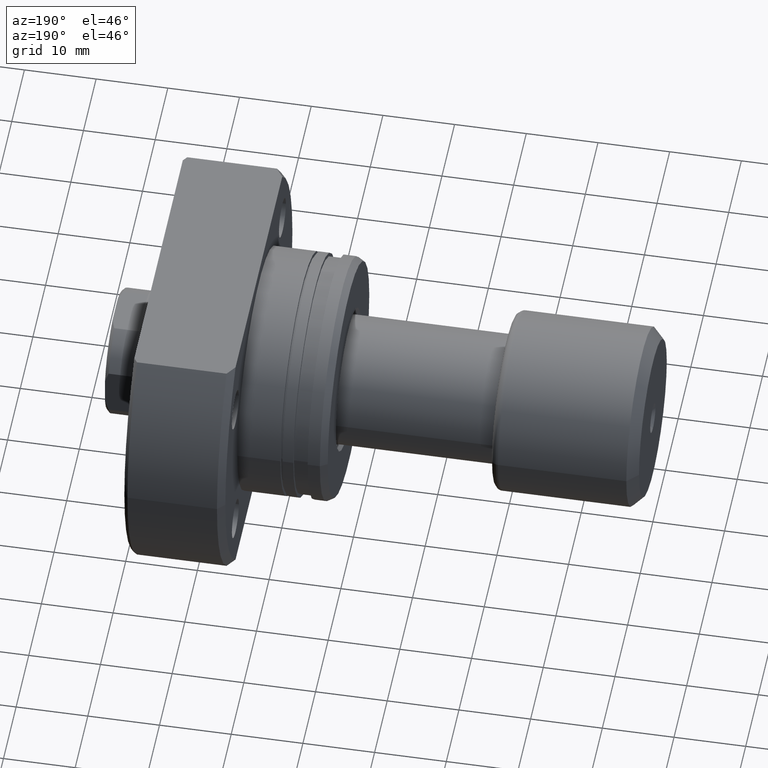
[diagram: clean part render]
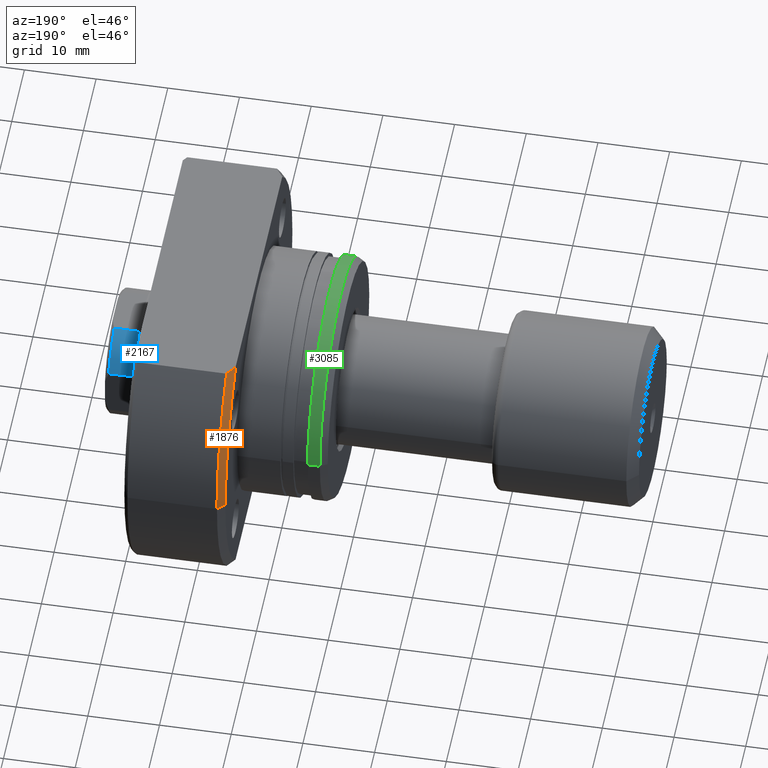
[diagram: same view with three faces highlighted in distinct colors, each labeled with its STEP entity id]
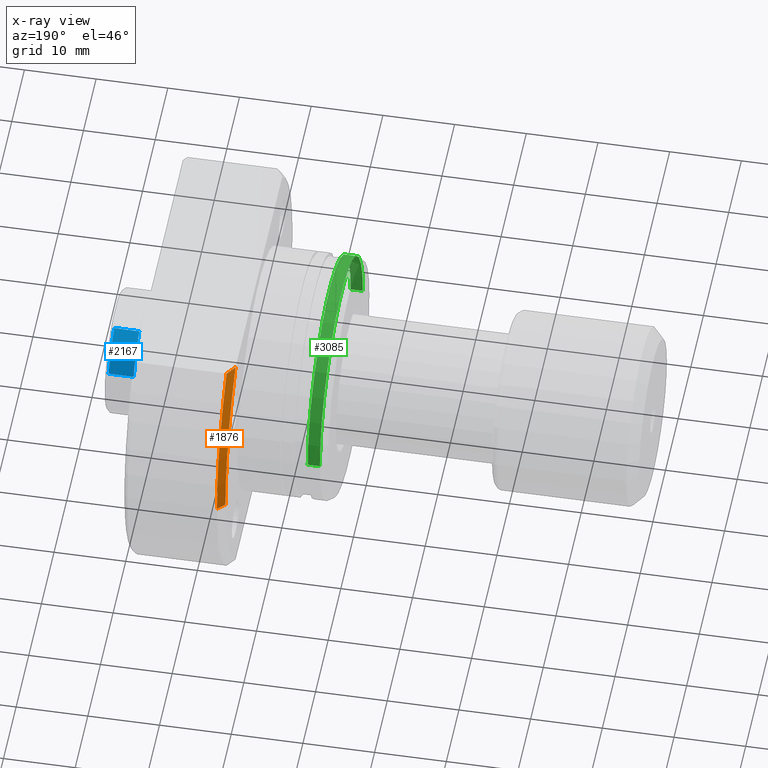
[diagram: x-ray of the same camera — body ghosted, the three highlighted faces saturated]
A machine part, auxiliary view with three faces highlighted in distinct colors.
The next image is the same camera in x-ray (body ghosted, the three faces saturated) — at least one of them is partly hidden behind the body in this view.
Their STEP definitions:

[orange] entity #1876 — the highlighted conical surface has half-angle 45 deg.
#54 = CARTESIAN_POINT ( 'NONE',  ( 13.16276636410033873, 19.41442114037127453, 19.00000000000001066 ) ) ;
#83 = CARTESIAN_POINT ( 'NONE',  ( 12.50000000000000355, 18.47295320191106072, 19.00000000000001066 ) ) ;
#107 = CARTESIAN_POINT ( 'NONE',  ( 12.82923531929442262, 18.94525104546319128, 19.00000000000001066 ) ) ;
#155 = DIRECTION ( 'NONE',  ( 0.7071067811865500152, 0.7071067811865450192, 0.000000000000000000 ) ) ;
#164 = VERTEX_POINT ( 'NONE', #3053 ) ;
#187 = CONICAL_SURFACE ( 'NONE', #1115, 26.49999999999993250, 0.7853981633974447263 ) ;
#481 = EDGE_LOOP ( 'NONE', ( #1389, #1722, #2633, #2459 ) ) ;
#628 = VECTOR ( 'NONE', #155, 1000.000000000000000 ) ;
#734 = DIRECTION ( 'NONE',  ( 1.000000000000000000, 9.242617352055502386E-18, -0.000000000000000000 ) ) ;
#745 = CARTESIAN_POINT ( 'NONE',  ( 12.50000000000000355, 18.47295320191106072, 19.00000000000001066 ) ) ;
#897 = EDGE_CURVE ( 'NONE', #164, #3152, #2175, .T. ) ;
#964 = AXIS2_PLACEMENT_3D ( 'NONE', #1221, #734, #1738 ) ;
#1092 = DIRECTION ( 'NONE',  ( 0.000000000000000000, 1.000000000000000000, 0.000000000000000000 ) ) ;
#1115 = AXIS2_PLACEMENT_3D ( 'NONE', #2290, #2577, #1092 ) ;
#1144 = EDGE_CURVE ( 'NONE', #164, #2671, #2298, .T. ) ;
#1221 = CARTESIAN_POINT ( 'NONE',  ( 13.49999999999999112, 1.247753342527491952E-16, 0.000000000000000000 ) ) ;
#1248 = B_SPLINE_CURVE_WITH_KNOTS ( 'NONE', 3,
 ( #1314, #54, #107, #83 ),
 .UNSPECIFIED., .F., .F.,
 ( 4, 4 ),
 ( 0.03128279945209438972, 0.03301205973984312758 ),
 .UNSPECIFIED. ) ;
#1314 = CARTESIAN_POINT ( 'NONE',  ( 13.49999999999998757, 19.88089535207129188, 19.00000000000000355 ) ) ;
#1389 = ORIENTED_EDGE ( 'NONE', *, *, #897, .F. ) ;
#1515 = EDGE_CURVE ( 'NONE', #1734, #2671, #1248, .T. ) ;
#1626 = DIRECTION ( 'NONE',  ( 1.000000000000000000, 9.242617352055502386E-18, -0.000000000000000000 ) ) ;
#1722 = ORIENTED_EDGE ( 'NONE', *, *, #1144, .T. ) ;
#1734 = VERTEX_POINT ( 'NONE', #2969 ) ;
#1738 = DIRECTION ( 'NONE',  ( 0.000000000000000000, 1.000000000000000000, 0.000000000000000000 ) ) ;
#1796 = EDGE_CURVE ( 'NONE', #3152, #1734, #2572, .T. ) ;
#1876 = ADVANCED_FACE ( 'NONE', ( #2774 ), #187, .T. ) ;
#2085 = CARTESIAN_POINT ( 'NONE',  ( 13.49999999999999112, 27.49999999999991473, 0.000000000000000000 ) ) ;
#2175 = LINE ( 'NONE', #3184, #628 ) ;
#2207 = AXIS2_PLACEMENT_3D ( 'NONE', #2678, #1626, #2620 ) ;
#2290 = CARTESIAN_POINT ( 'NONE',  ( 12.50000000000000355, 1.155327169006938207E-16, 0.000000000000000000 ) ) ;
#2298 = CIRCLE ( 'NONE', #2207, 26.49999999999993250 ) ;
#2459 = ORIENTED_EDGE ( 'NONE', *, *, #1796, .F. ) ;
#2572 = CIRCLE ( 'NONE', #964, 27.49999999999991473 ) ;
#2577 = DIRECTION ( 'NONE',  ( 1.000000000000000000, 9.242617352055502386E-18, -0.000000000000000000 ) ) ;
#2620 = DIRECTION ( 'NONE',  ( 0.000000000000000000, 1.000000000000000000, 0.000000000000000000 ) ) ;
#2633 = ORIENTED_EDGE ( 'NONE', *, *, #1515, .F. ) ;
#2671 = VERTEX_POINT ( 'NONE', #745 ) ;
#2678 = CARTESIAN_POINT ( 'NONE',  ( 12.50000000000000355, 1.155327169006938207E-16, 0.000000000000000000 ) ) ;
#2774 = FACE_OUTER_BOUND ( 'NONE', #481, .T. ) ;
#2969 = CARTESIAN_POINT ( 'NONE',  ( 13.49999999999998757, 19.88089535207129188, 19.00000000000000355 ) ) ;
#3053 = CARTESIAN_POINT ( 'NONE',  ( 12.50000000000000355, 26.49999999999993250, 0.000000000000000000 ) ) ;
#3152 = VERTEX_POINT ( 'NONE', #2085 ) ;
#3184 = CARTESIAN_POINT ( 'NONE',  ( 12.50000000000000355, 26.49999999999993250, 0.000000000000000000 ) ) ;

[blue] entity #2167 — the highlighted cylindrical surface (partial cylindrical patch) has radius 8.75 mm, axis along (-1, -0, -0).
#134 = AXIS2_PLACEMENT_3D ( 'NONE', #1238, #2224, #2233 ) ;
#138 = LINE ( 'NONE', #2651, #2830 ) ;
#290 = CARTESIAN_POINT ( 'NONE',  ( 71.00000000000012790, 7.999999999999282352, 3.544361719689665069 ) ) ;
#308 = CARTESIAN_POINT ( 'NONE',  ( 71.00000000000014211, 7.593750486690383471E-16, 0.000000000000000000 ) ) ;
#368 = ORIENTED_EDGE ( 'NONE', *, *, #1311, .F. ) ;
#485 = ORIENTED_EDGE ( 'NONE', *, *, #539, .T. ) ;
#519 = CARTESIAN_POINT ( 'NONE',  ( 71.00000000000012790, 7.999999999999282352, 3.544361719689665069 ) ) ;
#538 = AXIS2_PLACEMENT_3D ( 'NONE', #308, #1308, #778 ) ;
#539 = EDGE_CURVE ( 'NONE', #1853, #2512, #1474, .T. ) ;
#654 = VERTEX_POINT ( 'NONE', #519 ) ;
#760 = LINE ( 'NONE', #290, #1739 ) ;
#778 = DIRECTION ( 'NONE',  ( 0.000000000000000000, -1.000000000000000000, 0.000000000000000000 ) ) ;
#948 = AXIS2_PLACEMENT_3D ( 'NONE', #2970, #3188, #1908 ) ;
#986 = EDGE_LOOP ( 'NONE', ( #1969, #485, #368, #2395 ) ) ;
#1238 = CARTESIAN_POINT ( 'NONE',  ( 0.000000000000000000, 0.000000000000000000, 0.000000000000000000 ) ) ;
#1308 = DIRECTION ( 'NONE',  ( -1.000000000000000000, -1.069542322069065801E-17, -0.000000000000000000 ) ) ;
#1311 = EDGE_CURVE ( 'NONE', #654, #2512, #760, .T. ) ;
#1474 = CIRCLE ( 'NONE', #948, 8.750000000000000000 ) ;
#1490 = FACE_OUTER_BOUND ( 'NONE', #986, .T. ) ;
#1739 = VECTOR ( 'NONE', #2229, 1000.000000000000000 ) ;
#1785 = CARTESIAN_POINT ( 'NONE',  ( 71.00000000000004263, 3.544361719690563461, 7.999999999999540812 ) ) ;
#1853 = VERTEX_POINT ( 'NONE', #2024 ) ;
#1877 = DIRECTION ( 'NONE',  ( 1.000000000000000000, -1.657264799492230625E-14, -0.000000000000000000 ) ) ;
#1908 = DIRECTION ( 'NONE',  ( 0.000000000000000000, -1.000000000000000000, 0.000000000000000000 ) ) ;
#1969 = ORIENTED_EDGE ( 'NONE', *, *, #2060, .T. ) ;
#2024 = CARTESIAN_POINT ( 'NONE',  ( 74.50000000000000000, 3.544361719690505286, 7.999999999999540812 ) ) ;
#2060 = EDGE_CURVE ( 'NONE', #2789, #1853, #138, .T. ) ;
#2167 = ADVANCED_FACE ( 'NONE', ( #1490 ), #3197, .T. ) ;
#2224 = DIRECTION ( 'NONE',  ( -1.000000000000000000, -1.069542322069065801E-17, -0.000000000000000000 ) ) ;
#2229 = DIRECTION ( 'NONE',  ( 1.000000000000000000, -1.657264799492230625E-14, -0.000000000000000000 ) ) ;
#2232 = CARTESIAN_POINT ( 'NONE',  ( 74.50000000000000000, 7.999999999999224620, 3.544361719689665069 ) ) ;
#2233 = DIRECTION ( 'NONE',  ( 1.069542322069065955E-17, -1.000000000000000000, 0.000000000000000000 ) ) ;
#2345 = EDGE_CURVE ( 'NONE', #2789, #654, #2524, .T. ) ;
#2395 = ORIENTED_EDGE ( 'NONE', *, *, #2345, .F. ) ;
#2512 = VERTEX_POINT ( 'NONE', #2232 ) ;
#2524 = CIRCLE ( 'NONE', #538, 8.750000000000000000 ) ;
#2651 = CARTESIAN_POINT ( 'NONE',  ( 71.00000000000004263, 3.544361719690563461, 7.999999999999540812 ) ) ;
#2789 = VERTEX_POINT ( 'NONE', #1785 ) ;
#2830 = VECTOR ( 'NONE', #1877, 1000.000000000000000 ) ;
#2970 = CARTESIAN_POINT ( 'NONE',  ( 74.50000000000000000, 7.968090299414539992E-16, 0.000000000000000000 ) ) ;
#3188 = DIRECTION ( 'NONE',  ( -1.000000000000000000, -1.069542322069054245E-17, -0.000000000000000000 ) ) ;
#3197 = CYLINDRICAL_SURFACE ( 'NONE', #134, 8.750000000000000000 ) ;

[green] entity #3085 — the highlighted cylindrical surface (partial cylindrical patch) has radius 17 mm, axis along (1, 0, 0).
#38 = DIRECTION ( 'NONE',  ( 0.000000000000000000, 1.000000000000000000, 0.000000000000000000 ) ) ;
#148 = DIRECTION ( 'NONE',  ( 1.000000000000000000, 9.242617352055502386E-18, -0.000000000000000000 ) ) ;
#180 = VERTEX_POINT ( 'NONE', #774 ) ;
#286 = CARTESIAN_POINT ( 'NONE',  ( 2.699999999999786127, 2.495506685054785763E-17, 0.000000000000000000 ) ) ;
#295 = VERTEX_POINT ( 'NONE', #565 ) ;
#363 = CARTESIAN_POINT ( 'NONE',  ( 26.50000000000000711, 16.99999999999999645, 0.000000000000000000 ) ) ;
#366 = ORIENTED_EDGE ( 'NONE', *, *, #652, .F. ) ;
#516 = VERTEX_POINT ( 'NONE', #2137 ) ;
#565 = CARTESIAN_POINT ( 'NONE',  ( 0.9999999999997856159, 16.99999999999999645, 0.000000000000000000 ) ) ;
#652 = EDGE_CURVE ( 'NONE', #180, #516, #1419, .T. ) ;
#752 = CIRCLE ( 'NONE', #1641, 16.99999999999999645 ) ;
#774 = CARTESIAN_POINT ( 'NONE',  ( 2.699999999999786127, 16.99999999999999645, 0.000000000000000000 ) ) ;
#810 = DIRECTION ( 'NONE',  ( 1.000000000000000000, 9.242617352055502386E-18, -0.000000000000000000 ) ) ;
#992 = DIRECTION ( 'NONE',  ( 1.000000000000000000, 9.242617352055502386E-18, -0.000000000000000000 ) ) ;
#996 = EDGE_CURVE ( 'NONE', #295, #180, #3083, .T. ) ;
#1073 = DIRECTION ( 'NONE',  ( 1.000000000000000000, 9.242617352055502386E-18, -0.000000000000000000 ) ) ;
#1080 = CARTESIAN_POINT ( 'NONE',  ( 0.9999999999997857270, 9.242617352053524071E-18, 0.000000000000000000 ) ) ;
#1116 = CARTESIAN_POINT ( 'NONE',  ( 0.9999999999997859490, -16.99999999999999645, 2.081899558550499885E-15 ) ) ;
#1419 = CIRCLE ( 'NONE', #2614, 16.99999999999999645 ) ;
#1533 = LINE ( 'NONE', #2030, #2308 ) ;
#1574 = CARTESIAN_POINT ( 'NONE',  ( 26.50000000000000711, 2.449293598294708880E-16, 0.000000000000000000 ) ) ;
#1612 = VERTEX_POINT ( 'NONE', #1116 ) ;
#1641 = AXIS2_PLACEMENT_3D ( 'NONE', #1080, #810, #1776 ) ;
#1776 = DIRECTION ( 'NONE',  ( -1.275531967630005461E-17, 1.000000000000000000, 0.000000000000000000 ) ) ;
#1854 = EDGE_CURVE ( 'NONE', #295, #1612, #752, .T. ) ;
#1928 = EDGE_LOOP ( 'NONE', ( #2498, #3089, #366, #2250 ) ) ;
#2030 = CARTESIAN_POINT ( 'NONE',  ( 26.50000000000000711, -16.99999999999999645, 2.081899558550499885E-15 ) ) ;
#2137 = CARTESIAN_POINT ( 'NONE',  ( 2.699999999999786127, -16.99999999999999645, 2.081899558550499885E-15 ) ) ;
#2250 = ORIENTED_EDGE ( 'NONE', *, *, #996, .F. ) ;
#2295 = EDGE_CURVE ( 'NONE', #1612, #516, #1533, .T. ) ;
#2308 = VECTOR ( 'NONE', #2790, 1000.000000000000000 ) ;
#2319 = CYLINDRICAL_SURFACE ( 'NONE', #2782, 16.99999999999999645 ) ;
#2407 = VECTOR ( 'NONE', #1073, 1000.000000000000000 ) ;
#2498 = ORIENTED_EDGE ( 'NONE', *, *, #1854, .T. ) ;
#2614 = AXIS2_PLACEMENT_3D ( 'NONE', #286, #992, #38 ) ;
#2782 = AXIS2_PLACEMENT_3D ( 'NONE', #1574, #148, #2831 ) ;
#2790 = DIRECTION ( 'NONE',  ( 1.000000000000000000, 9.242617352055502386E-18, -0.000000000000000000 ) ) ;
#2831 = DIRECTION ( 'NONE',  ( 0.000000000000000000, 1.000000000000000000, 0.000000000000000000 ) ) ;
#3073 = FACE_OUTER_BOUND ( 'NONE', #1928, .T. ) ;
#3083 = LINE ( 'NONE', #363, #2407 ) ;
#3085 = ADVANCED_FACE ( 'NONE', ( #3073 ), #2319, .T. ) ;
#3089 = ORIENTED_EDGE ( 'NONE', *, *, #2295, .T. ) ;